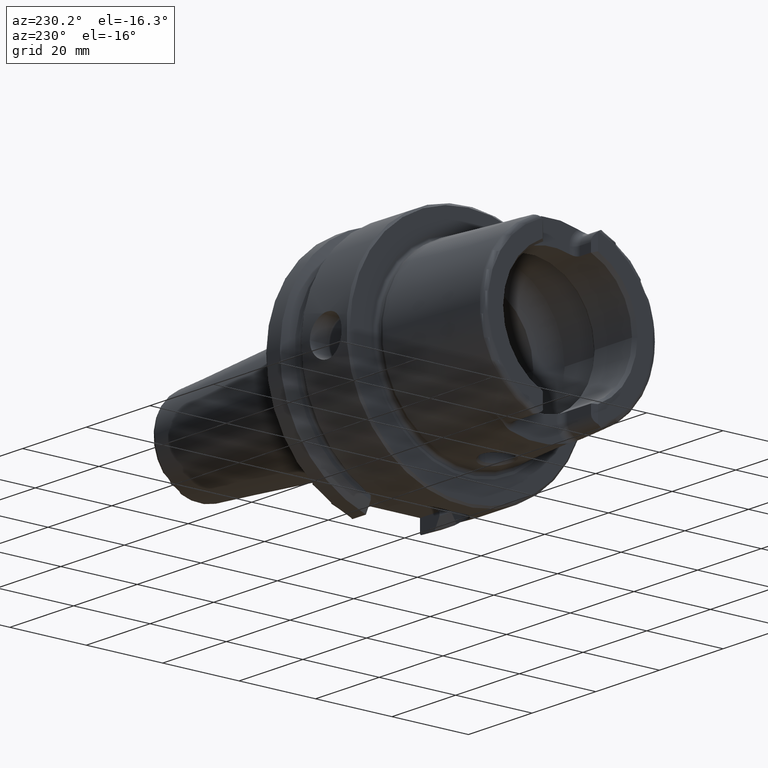
[diagram: clean part render]
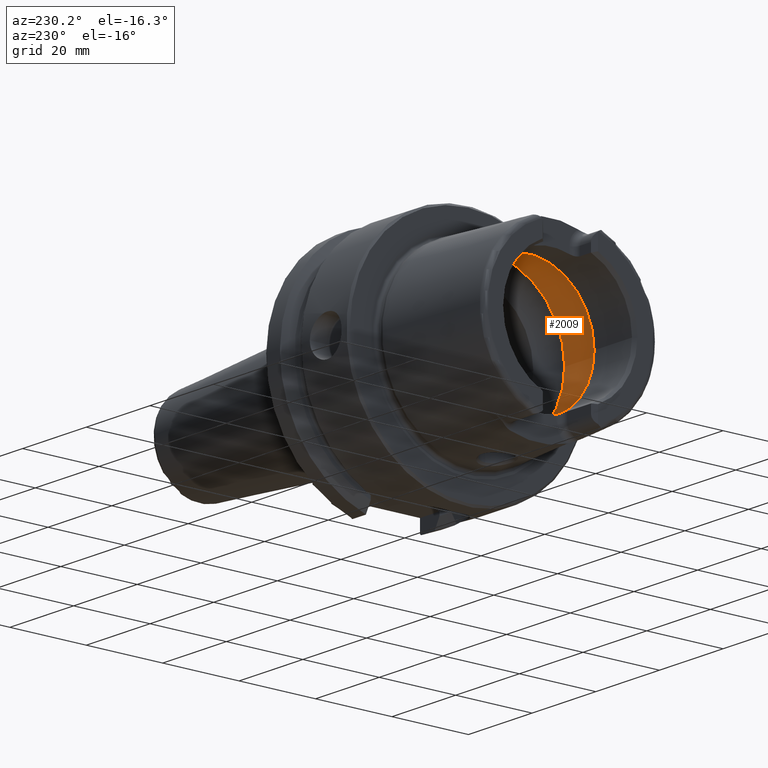
[diagram: same view with one face highlighted and labeled with its STEP entity id]
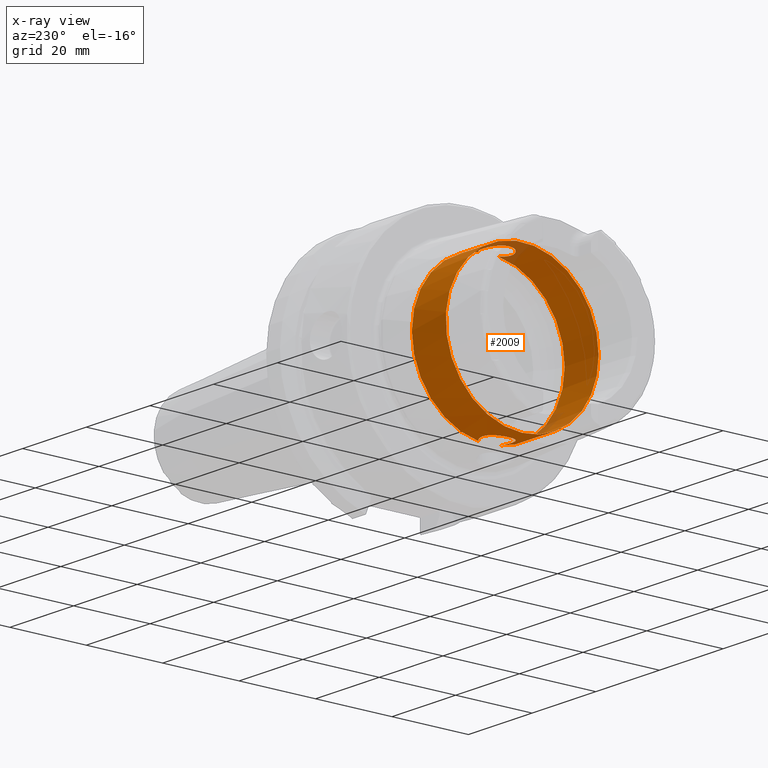
[diagram: x-ray of the same camera — body ghosted, the highlighted face saturated]
A machine part, auxiliary view. The second image highlights one B-rep face of the part: STEP entity #2009.
The next image is the same camera in x-ray: the body ghosted, the highlighted face saturated — about 4% of this face is hidden behind the body in this view.
In plain terms, the highlighted cylindrical surface (bore or boss wall) has radius 20 mm, axis along (-1, 0, 0).
Its self-contained STEP definition (entity closure, byte-faithful):
#50=B_SPLINE_CURVE_WITH_KNOTS('',3,(#3553,#3554,#3555,#3556,#3557,#3558,
#3559,#3560,#3561,#3562,#3563,#3564,#3565,#3566,#3567,#3568,#3569,#3570,
#3571,#3572,#3573,#3574,#3575,#3576,#3577,#3578,#3579,#3580,#3581,#3582,
#3583),.UNSPECIFIED.,.F.,.F.,(4,2,2,2,2,2,2,2,2,2,2,3,2,2,4),(-1.43107314142755,
-1.4161913421645,-1.27456976724955,-1.1329481923346,-0.991326617419658,
-0.849705042504712,-0.708089569336007,-0.566474096167302,-0.424858622998598,
-0.283243149829893,-0.141621574914946,0.,0.141621574914946,0.283243149829893,
0.298124949100151),.UNSPECIFIED.);
#55=B_SPLINE_CURVE_WITH_KNOTS('',3,(#3722,#3723,#3724,#3725,#3726,#3727,
#3728,#3729,#3730,#3731,#3732,#3733,#3734,#3735,#3736,#3737,#3738,#3739,
#3740,#3741,#3742,#3743,#3744,#3745,#3746,#3747,#3748,#3749,#3750,#3751,
#3752),.UNSPECIFIED.,.F.,.F.,(4,2,2,3,2,2,2,2,2,2,2,2,2,2,4),(-0.298124949092949,
-0.283243149829893,-0.141621574914946,0.,0.141621574914946,0.283243149829893,
0.424858622998598,0.566474096167302,0.708089569336007,0.849705042504712,
0.991326617419658,1.1329481923346,1.27456976724955,1.4161913421645,1.43107314143475),
 .UNSPECIFIED.);
#190=CYLINDRICAL_SURFACE('',#2198,20.);
#246=FACE_OUTER_BOUND('',#373,.T.);
#373=EDGE_LOOP('',(#1506,#1507,#1508,#1509,#1510,#1511,#1512,#1513,#1514));
#508=LINE('',#3768,#616);
#616=VECTOR('',#2581,20.);
#719=CIRCLE('',#2199,20.);
#720=CIRCLE('',#2200,20.);
#721=CIRCLE('',#2201,20.);
#722=CIRCLE('',#2202,20.);
#723=CIRCLE('',#2203,20.);
#893=VERTEX_POINT('',#3539);
#894=VERTEX_POINT('',#3552);
#897=VERTEX_POINT('',#3707);
#899=VERTEX_POINT('',#3721);
#900=VERTEX_POINT('',#3765);
#901=VERTEX_POINT('',#3767);
#902=VERTEX_POINT('',#3769);
#1124=EDGE_CURVE('',#894,#893,#50,.T.);
#1130=EDGE_CURVE('',#899,#897,#55,.T.);
#1133=EDGE_CURVE('',#900,#897,#719,.T.);
#1134=EDGE_CURVE('',#900,#901,#508,.T.);
#1135=EDGE_CURVE('',#901,#902,#720,.T.);
#1136=EDGE_CURVE('',#902,#901,#721,.T.);
#1137=EDGE_CURVE('',#894,#900,#722,.T.);
#1138=EDGE_CURVE('',#899,#893,#723,.T.);
#1506=ORIENTED_EDGE('',*,*,#1130,.T.);
#1507=ORIENTED_EDGE('',*,*,#1133,.F.);
#1508=ORIENTED_EDGE('',*,*,#1134,.T.);
#1509=ORIENTED_EDGE('',*,*,#1135,.T.);
#1510=ORIENTED_EDGE('',*,*,#1136,.T.);
#1511=ORIENTED_EDGE('',*,*,#1134,.F.);
#1512=ORIENTED_EDGE('',*,*,#1137,.F.);
#1513=ORIENTED_EDGE('',*,*,#1124,.T.);
#1514=ORIENTED_EDGE('',*,*,#1138,.F.);
#2009=ADVANCED_FACE('',(#246),#190,.F.);
#2198=AXIS2_PLACEMENT_3D('',#3764,#2577,#2578);
#2199=AXIS2_PLACEMENT_3D('',#3766,#2579,#2580);
#2200=AXIS2_PLACEMENT_3D('',#3770,#2582,#2583);
#2201=AXIS2_PLACEMENT_3D('',#3771,#2584,#2585);
#2202=AXIS2_PLACEMENT_3D('',#3772,#2586,#2587);
#2203=AXIS2_PLACEMENT_3D('',#3773,#2588,#2589);
#2577=DIRECTION('center_axis',(-1.,0.,0.));
#2578=DIRECTION('ref_axis',(0.,1.,0.));
#2579=DIRECTION('center_axis',(-1.,0.,0.));
#2580=DIRECTION('ref_axis',(0.,0.,1.));
#2581=DIRECTION('',(-1.,0.,0.));
#2582=DIRECTION('center_axis',(-1.,0.,0.));
#2583=DIRECTION('ref_axis',(0.,0.,1.));
#2584=DIRECTION('center_axis',(-1.,0.,0.));
#2585=DIRECTION('ref_axis',(0.,0.,1.));
#2586=DIRECTION('center_axis',(-1.,0.,0.));
#2587=DIRECTION('ref_axis',(0.,0.,1.));
#2588=DIRECTION('center_axis',(-1.,0.,0.));
#2589=DIRECTION('ref_axis',(0.,0.,1.));
#3539=CARTESIAN_POINT('',(-6.2449979983984,2.54410376580264,-19.8375284758165));
#3552=CARTESIAN_POINT('',(-6.2449979983984,-2.54410376580264,-19.8375284758165));
#3553=CARTESIAN_POINT('Ctrl Pts',(-6.2449979983984,-2.54410376580264,-19.8375284758165));
#3554=CARTESIAN_POINT('Ctrl Pts',(-6.27894943420456,-2.58086966932454,-19.8328133585216));
#3555=CARTESIAN_POINT('Ctrl Pts',(-6.31342869219743,-2.61672955109653,-19.8281105439642));
#3556=CARTESIAN_POINT('Ctrl Pts',(-6.68067160381732,-2.98397246271642,-19.7789868876592));
#3557=CARTESIAN_POINT('Ctrl Pts',(-7.10159661632629,-3.27238367725626,-19.731429741537));
#3558=CARTESIAN_POINT('Ctrl Pts',(-8.0251754070192,-3.65542701546408,-19.6640704965084));
#3559=CARTESIAN_POINT('Ctrl Pts',(-8.52792808361685,-3.75,-19.6452920568771));
#3560=CARTESIAN_POINT('Ctrl Pts',(-9.47207191638316,-3.75,-19.6452920568771));
#3561=CARTESIAN_POINT('Ctrl Pts',(-9.97482459298081,-3.65542701546408,-19.6640704965084));
#3562=CARTESIAN_POINT('Ctrl Pts',(-10.8984033836737,-3.27238367725626,-19.731429741537));
#3563=CARTESIAN_POINT('Ctrl Pts',(-11.3193283961827,-2.98397246271642,-19.7789868876592));
#3564=CARTESIAN_POINT('Ctrl Pts',(-11.9839581446669,-2.31934271423217,-19.8678900149943));
#3565=CARTESIAN_POINT('Ctrl Pts',(-12.2723805817074,-1.89841159537053,-19.9150796801946));
#3566=CARTESIAN_POINT('Ctrl Pts',(-12.6554320620407,-0.974811677040414,
-19.9815942165963));
#3567=CARTESIAN_POINT('Ctrl Pts',(-12.75,-0.472051577229017,-20.));
#3568=CARTESIAN_POINT('Ctrl Pts',(-12.75,0.472051577229015,-20.));
#3569=CARTESIAN_POINT('Ctrl Pts',(-12.6554320620407,0.974811677040408,-19.9815942165963));
#3570=CARTESIAN_POINT('Ctrl Pts',(-12.2723805817074,1.89841159537052,-19.9150796801946));
#3571=CARTESIAN_POINT('Ctrl Pts',(-11.9839581446669,2.31934271423217,-19.8678900149943));
#3572=CARTESIAN_POINT('Ctrl Pts',(-11.3193283961827,2.98397246271642,-19.7789868876592));
#3573=CARTESIAN_POINT('Ctrl Pts',(-10.8984033836737,3.27238367725626,-19.731429741537));
#3574=CARTESIAN_POINT('Ctrl Pts',(-9.97482459298081,3.65542701546408,-19.6640704965084));
#3575=CARTESIAN_POINT('Ctrl Pts',(-9.47207191638316,3.75,-19.6452920568771));
#3576=CARTESIAN_POINT('Ctrl Pts',(-9.,3.75,-19.6452920568771));
#3577=CARTESIAN_POINT('Ctrl Pts',(-8.52792808361685,3.75,-19.6452920568771));
#3578=CARTESIAN_POINT('Ctrl Pts',(-8.0251754070192,3.65542701546408,-19.6640704965084));
#3579=CARTESIAN_POINT('Ctrl Pts',(-7.10159661632629,3.27238367725626,-19.731429741537));
#3580=CARTESIAN_POINT('Ctrl Pts',(-6.68067160381732,2.98397246271642,-19.7789868876592));
#3581=CARTESIAN_POINT('Ctrl Pts',(-6.31342869218053,2.61672955107963,-19.8281105439665));
#3582=CARTESIAN_POINT('Ctrl Pts',(-6.27894943419011,2.5808696693089,-19.8328133585236));
#3583=CARTESIAN_POINT('Ctrl Pts',(-6.2449979983984,2.54410376580264,-19.8375284758165));
#3707=CARTESIAN_POINT('',(-6.2449979983984,-2.54410376580264,19.8375284758165));
#3721=CARTESIAN_POINT('',(-6.2449979983984,2.54410376580264,19.8375284758165));
#3722=CARTESIAN_POINT('Ctrl Pts',(-6.2449979983984,2.54410376580264,19.8375284758165));
#3723=CARTESIAN_POINT('Ctrl Pts',(-6.27894943420456,2.58086966932454,19.8328133585216));
#3724=CARTESIAN_POINT('Ctrl Pts',(-6.31342869219742,2.61672955109653,19.8281105439642));
#3725=CARTESIAN_POINT('Ctrl Pts',(-6.68067160381731,2.98397246271642,19.7789868876592));
#3726=CARTESIAN_POINT('Ctrl Pts',(-7.10159661632629,3.27238367725626,19.731429741537));
#3727=CARTESIAN_POINT('Ctrl Pts',(-8.02517540701919,3.65542701546408,19.6640704965084));
#3728=CARTESIAN_POINT('Ctrl Pts',(-8.52792808361684,3.75,19.6452920568771));
#3729=CARTESIAN_POINT('Ctrl Pts',(-9.,3.75,19.6452920568771));
#3730=CARTESIAN_POINT('Ctrl Pts',(-9.47207191638315,3.75,19.6452920568771));
#3731=CARTESIAN_POINT('Ctrl Pts',(-9.97482459298081,3.65542701546408,19.6640704965084));
#3732=CARTESIAN_POINT('Ctrl Pts',(-10.8984033836737,3.27238367725626,19.731429741537));
#3733=CARTESIAN_POINT('Ctrl Pts',(-11.3193283961827,2.98397246271642,19.7789868876592));
#3734=CARTESIAN_POINT('Ctrl Pts',(-11.9839581446669,2.31934271423217,19.8678900149943));
#3735=CARTESIAN_POINT('Ctrl Pts',(-12.2723805817074,1.89841159537052,19.9150796801946));
#3736=CARTESIAN_POINT('Ctrl Pts',(-12.6554320620407,0.97481167704041,19.9815942165963));
#3737=CARTESIAN_POINT('Ctrl Pts',(-12.75,0.472051577229015,20.));
#3738=CARTESIAN_POINT('Ctrl Pts',(-12.75,-0.472051577229017,20.));
#3739=CARTESIAN_POINT('Ctrl Pts',(-12.6554320620407,-0.974811677040414,
19.9815942165963));
#3740=CARTESIAN_POINT('Ctrl Pts',(-12.2723805817074,-1.89841159537053,19.9150796801946));
#3741=CARTESIAN_POINT('Ctrl Pts',(-11.9839581446669,-2.31934271423217,19.8678900149943));
#3742=CARTESIAN_POINT('Ctrl Pts',(-11.3193283961827,-2.98397246271642,19.7789868876592));
#3743=CARTESIAN_POINT('Ctrl Pts',(-10.8984033836737,-3.27238367725626,19.731429741537));
#3744=CARTESIAN_POINT('Ctrl Pts',(-9.9748245929808,-3.65542701546408,19.6640704965084));
#3745=CARTESIAN_POINT('Ctrl Pts',(-9.47207191638315,-3.75,19.6452920568771));
#3746=CARTESIAN_POINT('Ctrl Pts',(-8.52792808361684,-3.75,19.6452920568771));
#3747=CARTESIAN_POINT('Ctrl Pts',(-8.02517540701919,-3.65542701546408,19.6640704965084));
#3748=CARTESIAN_POINT('Ctrl Pts',(-7.10159661632629,-3.27238367725626,19.731429741537));
#3749=CARTESIAN_POINT('Ctrl Pts',(-6.68067160381731,-2.98397246271642,19.7789868876592));
#3750=CARTESIAN_POINT('Ctrl Pts',(-6.31342869218052,-2.61672955107963,19.8281105439665));
#3751=CARTESIAN_POINT('Ctrl Pts',(-6.27894943419011,-2.5808696693089,19.8328133585236));
#3752=CARTESIAN_POINT('Ctrl Pts',(-6.2449979983984,-2.54410376580264,19.8375284758165));
#3764=CARTESIAN_POINT('Origin',(-11.5812812165501,0.,0.));
#3765=CARTESIAN_POINT('',(-6.2449979983984,-20.,2.44929359829471E-15));
#3766=CARTESIAN_POINT('Origin',(-6.2449979983984,0.,0.));
#3767=CARTESIAN_POINT('',(-16.9175644347018,-20.,2.44929359829471E-15));
#3768=CARTESIAN_POINT('',(-11.5812812165501,-20.,2.44929359829471E-15));
#3769=CARTESIAN_POINT('',(-16.9175644347018,-2.44929359829471E-15,-20.));
#3770=CARTESIAN_POINT('Origin',(-16.9175644347018,0.,0.));
#3771=CARTESIAN_POINT('Origin',(-16.9175644347018,0.,0.));
#3772=CARTESIAN_POINT('Origin',(-6.2449979983984,0.,0.));
#3773=CARTESIAN_POINT('Origin',(-6.2449979983984,0.,0.));